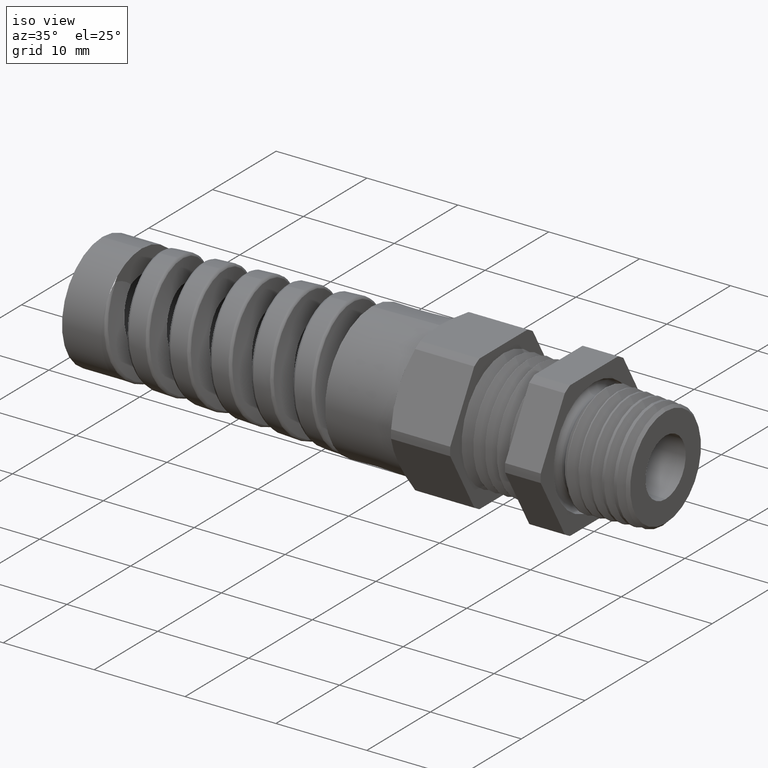
[diagram: clean part render]
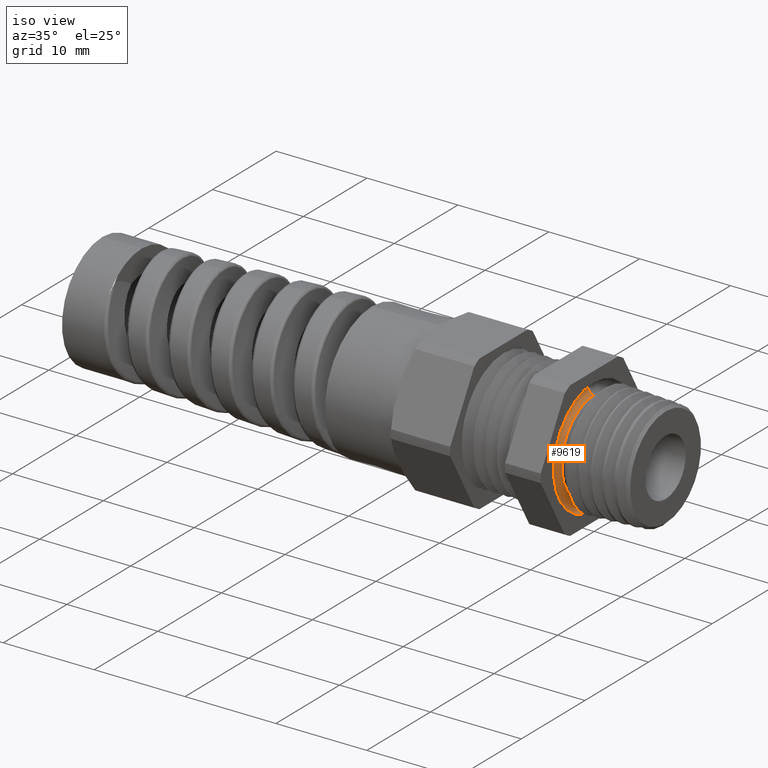
[diagram: same view with one face highlighted and labeled with its STEP entity id]
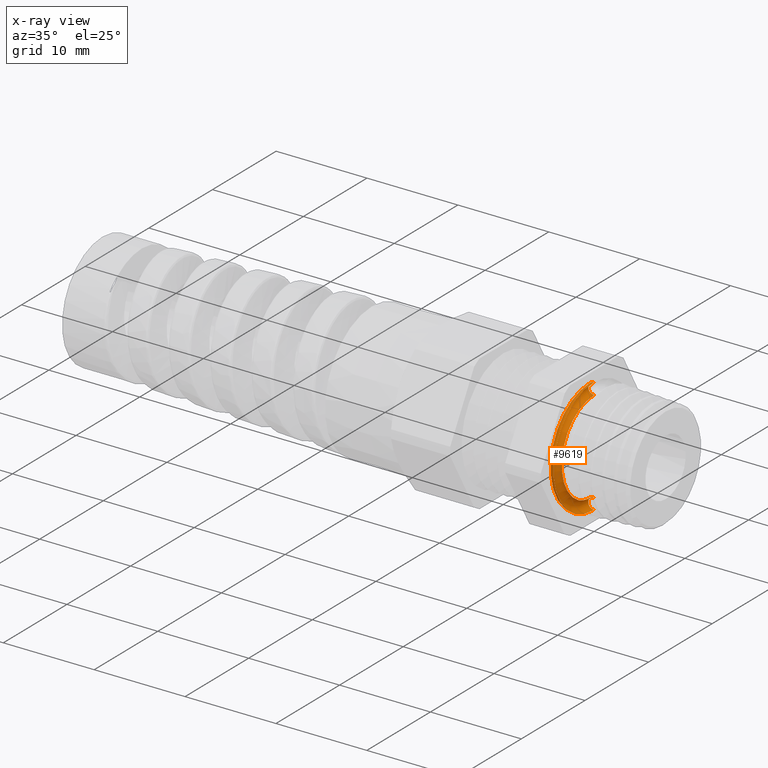
[diagram: x-ray of the same camera — body ghosted, the highlighted face saturated]
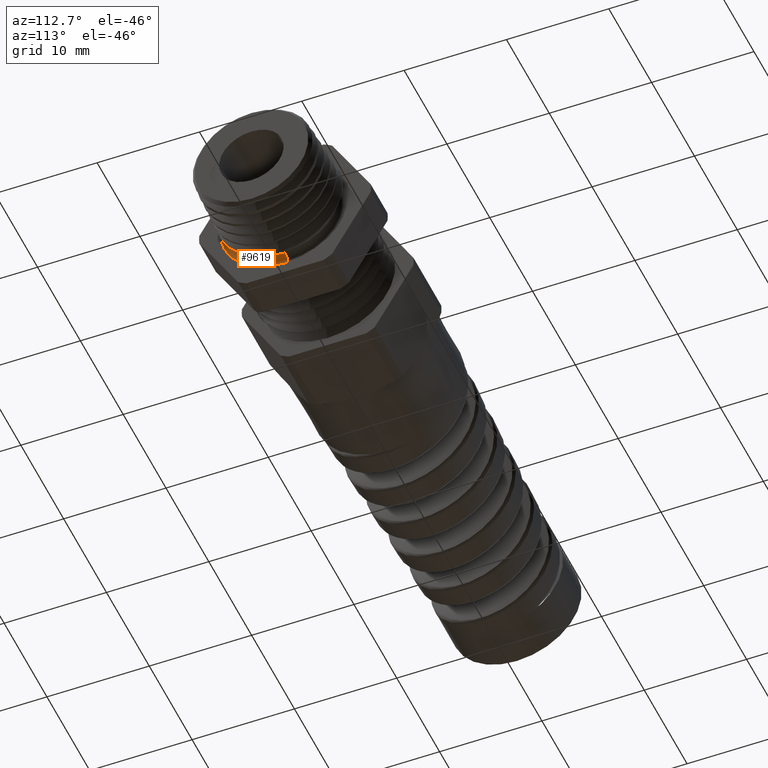
[diagram: same view with one face highlighted and labeled with its STEP entity id]
A machine part, iso view. The second image highlights one B-rep face of the part: STEP entity #9619.
The next image is the same camera in x-ray: the body ghosted, the highlighted face saturated — about 0% of this face is hidden behind the body in this view.
A second angle (auxiliary view) of the same face is appended — the face is thin or edge-on in the first view.
In plain terms, the highlighted toroidal blend (fillet) surface has major radius 5.715 mm and minor (blend) radius 0.635 mm.
Its self-contained STEP definition (entity closure, byte-faithful):
#995 = CARTESIAN_POINT ( 'NONE',  ( -3.061616997868362800E-018, 0.0000000000000000000, -0.2000000000000000900 ) ) ;
#1005 = CARTESIAN_POINT ( 'NONE',  ( -3.061616997868362800E-018, 2.449293598294707800E-017, 0.2000000000000000900 ) ) ;
#2626 = DIRECTION ( 'NONE',  ( 0.0000000000000000000, 1.224646799147352500E-016, 1.000000000000000000 ) ) ;
#2627 = DIRECTION ( 'NONE',  ( 0.0000000000000000000, 1.000000000000000000, -1.224646799147353200E-016 ) ) ;
#2628 = CARTESIAN_POINT ( 'NONE',  ( 0.0000000000000000000, 2.755455298081543900E-017, 0.2249999999999999200 ) ) ;
#2629 = AXIS2_PLACEMENT_3D ( 'NONE', #2628, #2627, #2626 ) ;
#2630 = CIRCLE ( 'NONE', #2629, 0.02499999999999983500 ) ;
#2633 = CARTESIAN_POINT ( 'NONE',  ( 1.365923996832131600E-016, 0.0000000000000000000, -0.2499999999999997500 ) ) ;
#2634 = DIRECTION ( 'NONE',  ( 0.0000000000000000000, 0.0000000000000000000, 1.000000000000000000 ) ) ;
#2635 = DIRECTION ( 'NONE',  ( 1.000000000000000000, 0.0000000000000000000, 0.0000000000000000000 ) ) ;
#2636 = CARTESIAN_POINT ( 'NONE',  ( 1.365923996832131600E-016, 0.0000000000000000000, 0.0000000000000000000 ) ) ;
#2637 = AXIS2_PLACEMENT_3D ( 'NONE', #2636, #2635, #2634 ) ;
#2638 = CIRCLE ( 'NONE', #2637, 0.2499999999999997500 ) ;
#2639 = DIRECTION ( 'NONE',  ( 0.0000000000000000000, 0.0000000000000000000, -1.000000000000000000 ) ) ;
#2640 = DIRECTION ( 'NONE',  ( 0.0000000000000000000, -1.000000000000000000, 0.0000000000000000000 ) ) ;
#2641 = CARTESIAN_POINT ( 'NONE',  ( 0.0000000000000000000, 0.0000000000000000000, -0.2249999999999999200 ) ) ;
#2642 = AXIS2_PLACEMENT_3D ( 'NONE', #2641, #2640, #2639 ) ;
#2643 = CIRCLE ( 'NONE', #2642, 0.02499999999999983500 ) ;
#2646 = CARTESIAN_POINT ( 'NONE',  ( 1.365923996832131600E-016, 3.061616997868379900E-017, 0.2499999999999997500 ) ) ;
#2721 = TOROIDAL_SURFACE ( 'NONE', #2722, 0.2249999999999999200, 0.02499999999999983500 ) ;
#2722 = AXIS2_PLACEMENT_3D ( 'NONE', #2797, #2796, #2795 ) ;
#2723 = FACE_OUTER_BOUND ( 'NONE', #9629, .T. ) ;
#2795 = DIRECTION ( 'NONE',  ( 0.0000000000000000000, 0.0000000000000000000, -1.000000000000000000 ) ) ;
#2796 = DIRECTION ( 'NONE',  ( 1.000000000000000000, 0.0000000000000000000, 0.0000000000000000000 ) ) ;
#2797 = CARTESIAN_POINT ( 'NONE',  ( 0.0000000000000000000, 0.0000000000000000000, 0.0000000000000000000 ) ) ;
#5233 = EDGE_CURVE ( 'NONE', #9521, #9527, #9009, .T. ) ;
#9006 = DIRECTION ( 'NONE',  ( 0.0000000000000000000, 0.0000000000000000000, -1.000000000000000000 ) ) ;
#9007 = DIRECTION ( 'NONE',  ( 1.000000000000000000, 0.0000000000000000000, 0.0000000000000000000 ) ) ;
#9008 = AXIS2_PLACEMENT_3D ( 'NONE', #9014, #9007, #9006 ) ;
#9009 = CIRCLE ( 'NONE', #9008, 0.2000000000000000900 ) ;
#9014 = CARTESIAN_POINT ( 'NONE',  ( -3.061616997868362800E-018, 0.0000000000000000000, 0.0000000000000000000 ) ) ;
#9521 = VERTEX_POINT ( 'NONE', #1005 ) ;
#9527 = VERTEX_POINT ( 'NONE', #995 ) ;
#9576 = VERTEX_POINT ( 'NONE', #2646 ) ;
#9579 = ORIENTED_EDGE ( 'NONE', *, *, #5233, .F. ) ;
#9583 = ORIENTED_EDGE ( 'NONE', *, *, #9584, .F. ) ;
#9584 = EDGE_CURVE ( 'NONE', #9527, #9586, #2643, .T. ) ;
#9585 = EDGE_CURVE ( 'NONE', #9576, #9586, #2638, .T. ) ;
#9586 = VERTEX_POINT ( 'NONE', #2633 ) ;
#9588 = EDGE_CURVE ( 'NONE', #9521, #9576, #2630, .T. ) ;
#9590 = ORIENTED_EDGE ( 'NONE', *, *, #9588, .T. ) ;
#9592 = ORIENTED_EDGE ( 'NONE', *, *, #9585, .T. ) ;
#9619 = ADVANCED_FACE ( 'NONE', ( #2723 ), #2721, .F. ) ;
#9629 = EDGE_LOOP ( 'NONE', ( #9579, #9590, #9592, #9583 ) ) ;